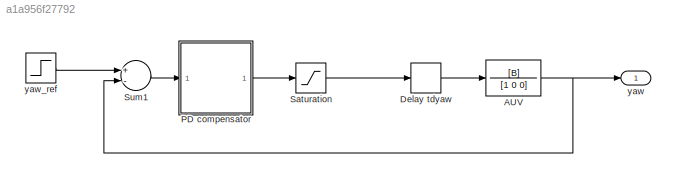
MODEL slx_a1a956f27792
KIND model
CONFIG AbsTol = 1e-10
CONFIG EnableMultiTasking = off
CONFIG FixedStep = auto
CONFIG MaxStep = auto
CONFIG MinStep = auto
CONFIG RelTol = 1e-8
CONFIG SampleTimeConstraint = Unconstrained
CONFIG Solver = ode45
CONFIG SolverName = ode45
CONFIG StartTime = 0.0
CONFIG StopTime = 12
BLOCK [TransferFcn] AUV
  Denominator = [1 0 0]
  Numerator = [B]
BLOCK [TransportDelay] Delay tdyaw
  DelayTime = tdyaw
  Ports = [1, 1]
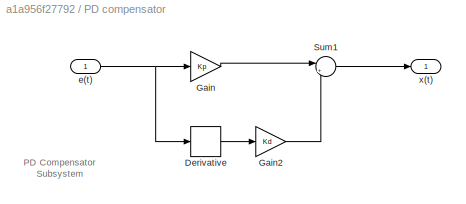
BLOCK [SubSystem] PD compensator
  Ports = [1, 1]
  RequestExecContextInheritance = off
  Variant = off
BLOCK [Derivative] PD compensator/Derivative
BLOCK [Gain] PD compensator/Gain
  Gain = Kp
  OutDataTypeStr = Inherit: Inherit via internal rule
  ParamDataTypeStr = Inherit: Inherit via internal rule
  SaturateOnIntegerOverflow = off
BLOCK [Gain] PD compensator/Gain2
  Gain = Kd
  OutDataTypeStr = Inherit: Inherit via internal rule
  ParamDataTypeStr = Inherit: Inherit via internal rule
  SaturateOnIntegerOverflow = off
BLOCK [Sum] PD compensator/Sum1
  IconShape = round
  InputSameDT = off
  Inputs = |++
  OutDataTypeStr = Inherit: Inherit via internal rule
  Ports = [2, 1]
  SaturateOnIntegerOverflow = off
BLOCK [Inport] PD compensator/e(t)
  IconDisplay = Port number
BLOCK [Outport] PD compensator/x(t)
  IconDisplay = Port number
BLOCK [Saturate] Saturation
  InputPortMap = u0
  LinearizeAsGain = off
  LowerLimit = -1
  Ports = [1, 1]
  UpperLimit = 1
  ZeroCross = off
BLOCK [Sum] Sum1
  Inputs = +-
  Ports = [2, 1]
BLOCK [Outport] yaw
  IconDisplay = Port number
BLOCK [Step] yaw_ref
  After = r_set
  SampleTime = .001
  Time = 0
ANNOTATION PD compensator: PD Compensator Subsystem
NET AUV:1 -> Sum1:2, yaw:1
LINE Delay tdyaw:1 -> AUV:1
LINE PD compensator/Derivative:1 -> PD compensator/Gain2:1
LINE PD compensator/Gain2:1 -> PD compensator/Sum1:2
LINE PD compensator/Gain:1 -> PD compensator/Sum1:1
LINE PD compensator/Sum1:1 -> PD compensator/x(t):1
NET PD compensator/e(t):1 -> PD compensator/Derivative:1, PD compensator/Gain:1
LINE PD compensator:1 -> Saturation:1
LINE Saturation:1 -> Delay tdyaw:1
LINE Sum1:1 -> PD compensator:1
LINE yaw_ref:1 -> Sum1:1
note: NET lines group one-source signal fan-out (src -> all destinations, sorted); 1:1 wires keep LINE
